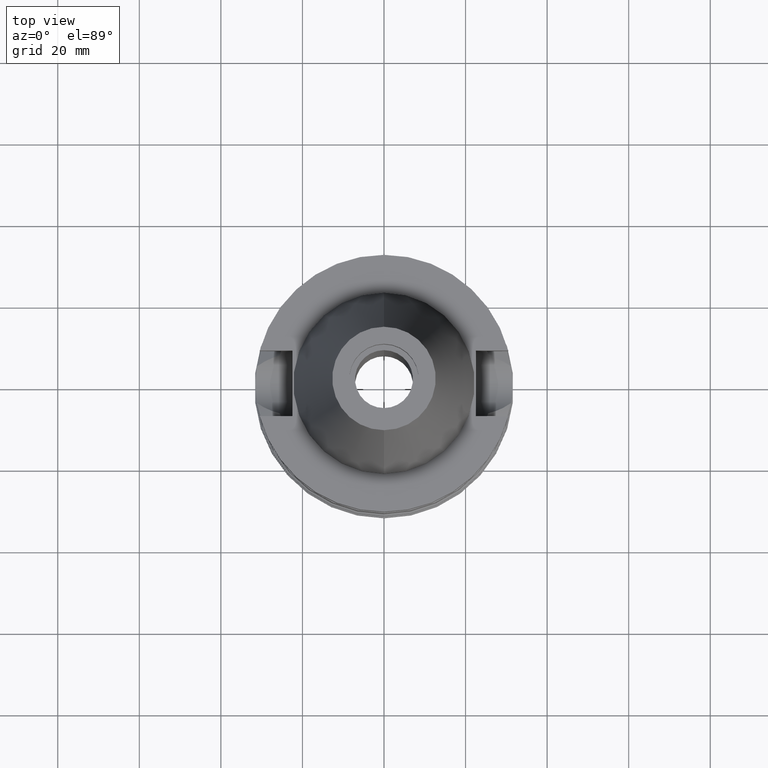
[diagram: clean part render]
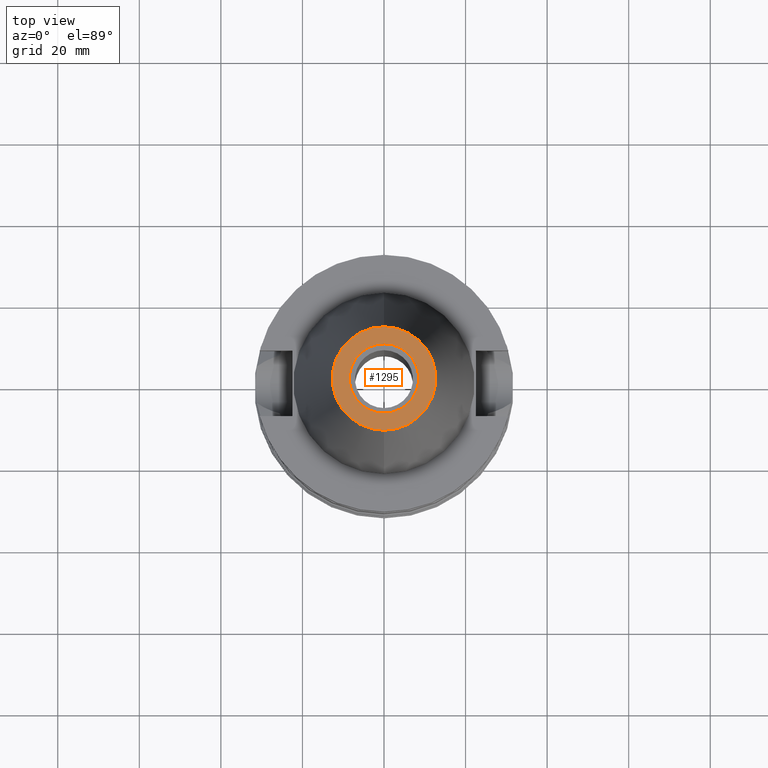
[diagram: same view with one face highlighted and labeled with its STEP entity id]
A machine part, top view. The second image highlights one B-rep face of the part: STEP entity #1295.
In plain terms, the highlighted planar face has unit normal (0, 0, -1).
Its self-contained STEP definition (entity closure, byte-faithful):
#17=CARTESIAN_POINT('',(0.E0,1.625106302469E-14,6.54E1));
#18=DIRECTION('',(0.E0,0.E0,-1.E0));
#19=DIRECTION('',(0.E0,-1.E0,0.E0));
#20=AXIS2_PLACEMENT_3D('',#17,#18,#19);
#26=CARTESIAN_POINT('',(0.E0,1.625106302469E-14,6.54E1));
#27=DIRECTION('',(0.E0,0.E0,-1.E0));
#28=DIRECTION('',(0.E0,1.E0,0.E0));
#29=AXIS2_PLACEMENT_3D('',#26,#27,#28);
#34=CARTESIAN_POINT('',(0.E0,2.120720862083E-14,6.54E1));
#35=DIRECTION('',(0.E0,0.E0,1.E0));
#36=DIRECTION('',(0.E0,-1.E0,0.E0));
#37=AXIS2_PLACEMENT_3D('',#34,#35,#36);
#42=CARTESIAN_POINT('',(0.E0,2.120720862083E-14,6.54E1));
#43=DIRECTION('',(0.E0,0.E0,1.E0));
#44=DIRECTION('',(0.E0,1.E0,0.E0));
#45=AXIS2_PLACEMENT_3D('',#42,#43,#44);
#1113=CARTESIAN_POINT('',(0.E0,-1.268766899430E1,6.54E1));
#1114=CARTESIAN_POINT('',(0.E0,1.268766899430E1,6.54E1));
#1115=VERTEX_POINT('',#1113);
#1116=VERTEX_POINT('',#1114);
#1117=CARTESIAN_POINT('',(0.E0,-8.5E0,6.54E1));
#1118=CARTESIAN_POINT('',(0.E0,8.5E0,6.54E1));
#1119=VERTEX_POINT('',#1117);
#1120=VERTEX_POINT('',#1118);
#1278=CARTESIAN_POINT('',(0.E0,2.025565805790E-14,6.54E1));
#1279=DIRECTION('',(0.E0,0.E0,-1.E0));
#1280=DIRECTION('',(0.E0,-1.E0,0.E0));
#1281=AXIS2_PLACEMENT_3D('',#1278,#1279,#1280);
#1282=PLANE('',#1281);
#1284=ORIENTED_EDGE('',*,*,#1283,.T.);
#1286=ORIENTED_EDGE('',*,*,#1285,.T.);
#1287=EDGE_LOOP('',(#1284,#1286));
#1288=FACE_OUTER_BOUND('',#1287,.F.);
#1290=ORIENTED_EDGE('',*,*,#1289,.T.);
#1292=ORIENTED_EDGE('',*,*,#1291,.T.);
#1293=EDGE_LOOP('',(#1290,#1292));
#1294=FACE_BOUND('',#1293,.F.);
#21=CIRCLE('',#20,1.268766899430E1);
#30=CIRCLE('',#29,1.268766899430E1);
#38=CIRCLE('',#37,8.5E0);
#46=CIRCLE('',#45,8.5E0);
#1283=EDGE_CURVE('',#1115,#1116,#21,.T.);
#1285=EDGE_CURVE('',#1116,#1115,#30,.T.);
#1289=EDGE_CURVE('',#1119,#1120,#38,.T.);
#1291=EDGE_CURVE('',#1120,#1119,#46,.T.);
#1295=ADVANCED_FACE('',(#1288,#1294),#1282,.F.);